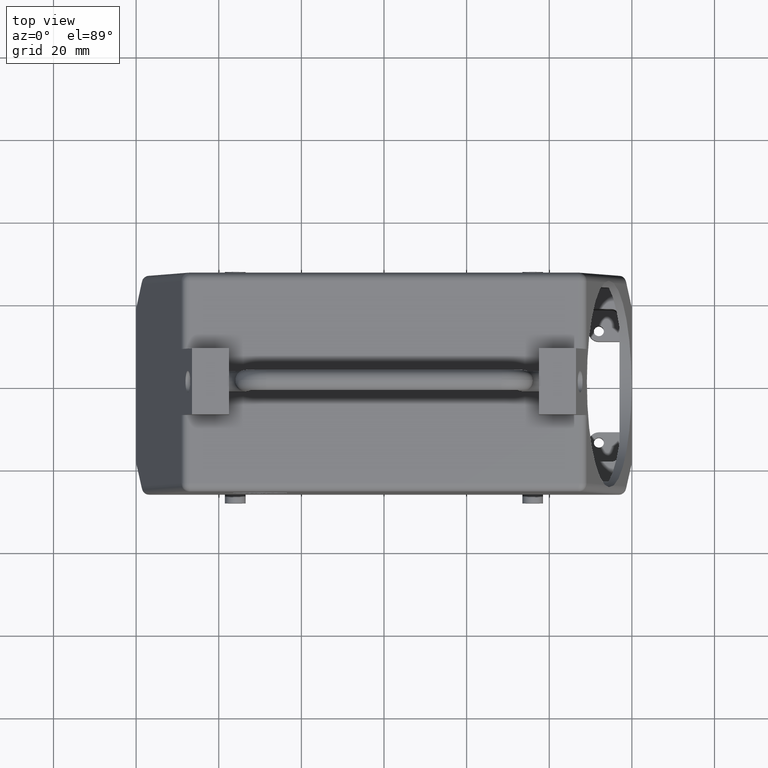
[diagram: clean part render]
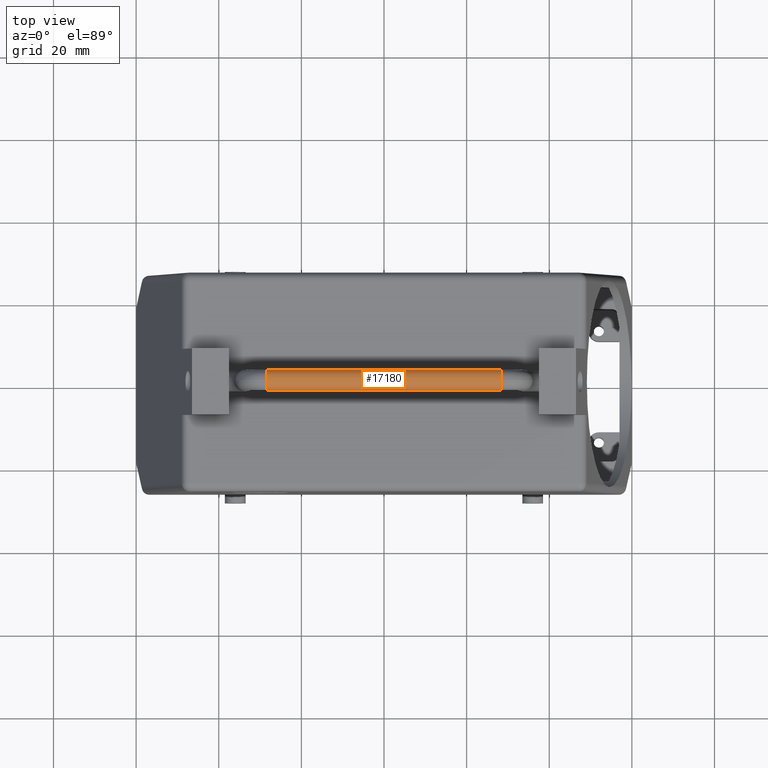
[diagram: same view with one face highlighted and labeled with its STEP entity id]
A machine part, top view. The second image highlights one B-rep face of the part: STEP entity #17180.
In plain terms, the highlighted cylindrical surface (edge-blend (fillet) strip) has radius 2.5 mm, axis along (-1, 0, 0).
Its self-contained STEP definition (entity closure, byte-faithful):
#60=CARTESIAN_POINT('',(28.5,0.,115.));
#70=DIRECTION('',(1.,0.,0.));
#80=DIRECTION('',(0.,-1.,0.));
#90=AXIS2_PLACEMENT_3D('',#60,#70,#80);
#100=CIRCLE('',#90,2.5);
#130=CARTESIAN_POINT('',(28.5,2.5,115.));
#140=VERTEX_POINT('',#130);
#440=CARTESIAN_POINT('',(28.5,3.06161699786838E-16,117.5));
#450=VERTEX_POINT('',#440);
#480=EDGE_CURVE('',#140,#450,#100,.T.);
#700=CARTESIAN_POINT('',(-28.5,3.06161699786838E-16,117.5));
#710=VERTEX_POINT('',#700);
#760=CARTESIAN_POINT('',(-28.5,0.,115.));
#770=DIRECTION('',(1.,0.,0.));
#780=DIRECTION('',(0.,-1.,0.));
#790=AXIS2_PLACEMENT_3D('',#760,#770,#780);
#800=CIRCLE('',#790,2.5);
#810=CARTESIAN_POINT('',(-28.5,-2.5,115.));
#820=VERTEX_POINT('',#810);
#830=EDGE_CURVE('',#710,#820,#800,.T.);
#16890=CARTESIAN_POINT('',(28.5,0.,115.));
#16900=DIRECTION('',(-1.,0.,0.));
#16910=DIRECTION('',(0.,-1.,0.));
#16920=AXIS2_PLACEMENT_3D('',#16890,#16900,#16910);
#16930=CYLINDRICAL_SURFACE('',#16920,2.5);
#16940=CARTESIAN_POINT('',(28.5,-2.5,115.));
#16950=VERTEX_POINT('',#16940);
#16960=EDGE_CURVE('',#450,#16950,#100,.T.);
#16970=ORIENTED_EDGE('',*,*,#16960,.F.);
#16980=CARTESIAN_POINT('',(28.5,-2.5,115.));
#16990=DIRECTION('',(-1.,0.,0.));
#17000=VECTOR('',#16990,1.);
#17010=LINE('',#16980,#17000);
#17020=EDGE_CURVE('',#16950,#820,#17010,.T.);
#17030=ORIENTED_EDGE('',*,*,#17020,.F.);
#17040=ORIENTED_EDGE('',*,*,#830,.T.);
#17050=CARTESIAN_POINT('',(-28.5,2.5,115.));
#17060=VERTEX_POINT('',#17050);
#17070=EDGE_CURVE('',#17060,#710,#800,.T.);
#17080=ORIENTED_EDGE('',*,*,#17070,.T.);
#17090=CARTESIAN_POINT('',(28.5,2.5,115.));
#17100=DIRECTION('',(-1.,0.,0.));
#17110=VECTOR('',#17100,1.);
#17120=LINE('',#17090,#17110);
#17130=EDGE_CURVE('',#140,#17060,#17120,.T.);
#17140=ORIENTED_EDGE('',*,*,#17130,.T.);
#17150=ORIENTED_EDGE('',*,*,#480,.F.);
#17160=EDGE_LOOP('',(#17150,#17140,#17080,#17040,#17030,#16970));
#17170=FACE_OUTER_BOUND('',#17160,.T.);
#17180=ADVANCED_FACE('',(#17170),#16930,.T.);